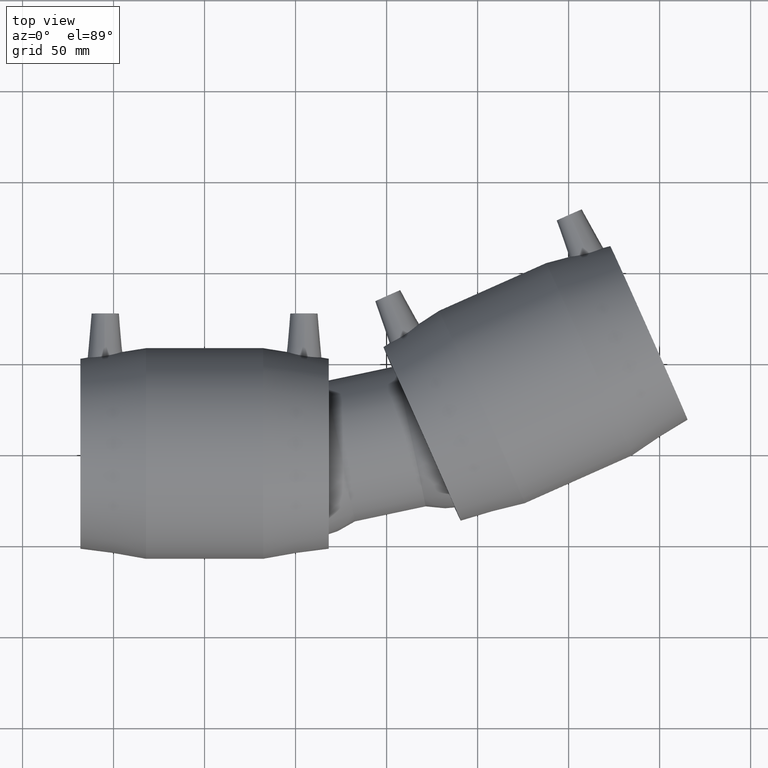
[diagram: clean part render]
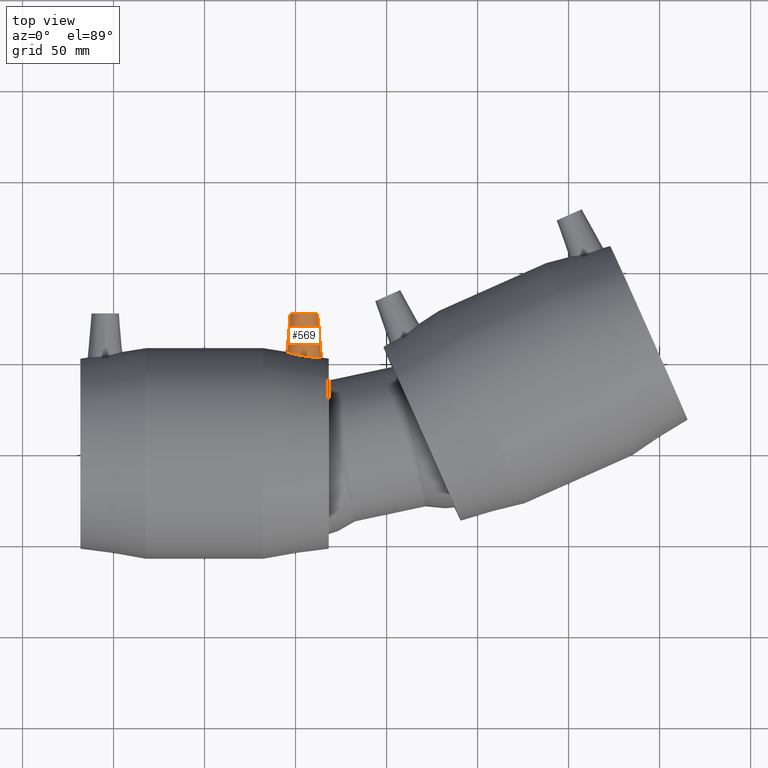
[diagram: same view with one face highlighted and labeled with its STEP entity id]
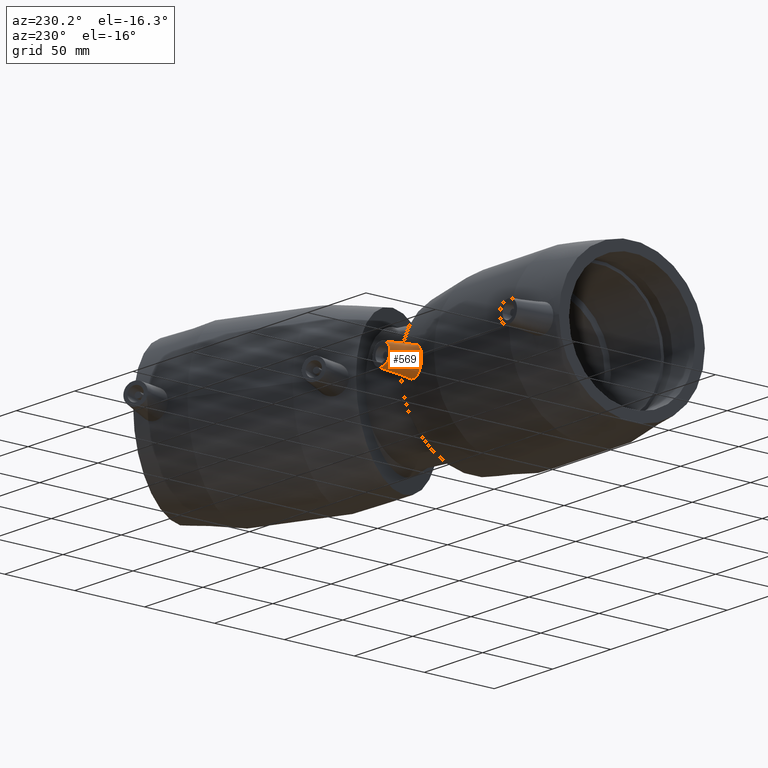
[diagram: same view with one face highlighted and labeled with its STEP entity id]
A machine part, top view. The second image highlights one B-rep face of the part: STEP entity #569.
A second angle (auxiliary view) of the same face is appended — the face is thin or edge-on in the first view.
In plain terms, the highlighted conical surface has half-angle 5 deg.
Its self-contained STEP definition (entity closure, byte-faithful):
#15=CONICAL_SURFACE('',#641,7.5,5.);
#76=FACE_BOUND('',#197,.T.);
#131=FACE_OUTER_BOUND('',#196,.T.);
#196=EDGE_LOOP('',(#469));
#197=EDGE_LOOP('',(#470));
#277=B_SPLINE_CURVE_WITH_KNOTS('',3,(#1157,#1158,#1159,#1160,#1161,#1162,
#1163,#1164,#1165,#1166,#1167,#1168,#1169,#1170,#1171,#1172,#1173,#1174,
#1175,#1176,#1177,#1178,#1179,#1180,#1181,#1182,#1183,#1184,#1185,#1186,
#1187,#1188,#1189,#1190),.UNSPECIFIED.,.T.,.F.,(4,2,2,2,2,2,2,2,2,2,2,2,
2,2,2,2,4),(0.,0.374990088919225,0.749980177838451,1.11609909215705,1.48221800647564,
1.84833692079424,2.21445583511283,2.58944592403206,2.96443601295128,3.31666423655562,
3.66889246015995,4.02184967276137,4.37480688536279,4.7277640979642,5.08072131056562,
5.43294953416995,5.78517775777429),.UNSPECIFIED.);
#297=CIRCLE('',#642,7.5);
#346=VERTEX_POINT('',#1154);
#347=VERTEX_POINT('',#1156);
#401=EDGE_CURVE('',#346,#346,#297,.T.);
#402=EDGE_CURVE('',#347,#347,#277,.T.);
#469=ORIENTED_EDGE('',*,*,#401,.F.);
#470=ORIENTED_EDGE('',*,*,#402,.F.);
#569=ADVANCED_FACE('',(#131,#76),#15,.T.);
#641=AXIS2_PLACEMENT_3D('',#1153,#777,#778);
#642=AXIS2_PLACEMENT_3D('',#1155,#779,#780);
#777=DIRECTION('center_axis',(0.,-1.,0.));
#778=DIRECTION('ref_axis',(-1.,0.,0.));
#779=DIRECTION('center_axis',(0.,1.,0.));
#780=DIRECTION('ref_axis',(-1.,0.,0.));
#1153=CARTESIAN_POINT('Origin',(54.56,77.,0.));
#1154=CARTESIAN_POINT('',(62.06,77.,9.18485099360515E-16));
#1155=CARTESIAN_POINT('Origin',(54.56,77.,0.));
#1156=CARTESIAN_POINT('',(54.9629770549691,53.4869952867012,9.54862179279033));
#1157=CARTESIAN_POINT('Ctrl Pts',(54.9629770549693,53.4869952867012,9.54862179279033));
#1158=CARTESIAN_POINT('Ctrl Pts',(53.7289235223367,53.6827205807601,9.58356312382291));
#1159=CARTESIAN_POINT('Ctrl Pts',(52.4173799209787,53.9385019798939,9.36352289397664));
#1160=CARTESIAN_POINT('Ctrl Pts',(50.0076291370687,54.4891463267129,8.40402339335127));
#1161=CARTESIAN_POINT('Ctrl Pts',(48.9087328003708,54.7815292013589,7.66487337951115));
#1162=CARTESIAN_POINT('Ctrl Pts',(47.1908024830213,55.2713100644481,5.95855418812734));
#1163=CARTESIAN_POINT('Ctrl Pts',(46.4492136358688,55.5025109305279,4.88479605742722));
#1164=CARTESIAN_POINT('Ctrl Pts',(45.4607482748411,55.8195972247125,2.51594984170668));
#1165=CARTESIAN_POINT('Ctrl Pts',(45.2142740493585,55.9032558476034,1.22039638106198));
#1166=CARTESIAN_POINT('Ctrl Pts',(45.2142740493585,55.9032558476034,-1.22039638106198));
#1167=CARTESIAN_POINT('Ctrl Pts',(45.4607482748411,55.8195972247125,-2.51594984170668));
#1168=CARTESIAN_POINT('Ctrl Pts',(46.4492136358688,55.5025109305279,-4.88479605742722));
#1169=CARTESIAN_POINT('Ctrl Pts',(47.1908024830213,55.2713100644481,-5.95855418812734));
#1170=CARTESIAN_POINT('Ctrl Pts',(48.9087328003708,54.7815292013589,-7.66487337951115));
#1171=CARTESIAN_POINT('Ctrl Pts',(50.0076291370687,54.4891463267129,-8.40402339335127));
#1172=CARTESIAN_POINT('Ctrl Pts',(52.4173799209787,53.9385019798939,-9.36352289397664));
#1173=CARTESIAN_POINT('Ctrl Pts',(53.7289235223367,53.6827205807601,-9.58356312382291));
#1174=CARTESIAN_POINT('Ctrl Pts',(56.1221236470421,53.3031505007244,-9.51580139746881));
#1175=CARTESIAN_POINT('Ctrl Pts',(57.3597601320536,53.1492389392509,-9.25257514912441));
#1176=CARTESIAN_POINT('Ctrl Pts',(59.6339121788256,52.9434146554307,-8.24923013019714));
#1177=CARTESIAN_POINT('Ctrl Pts',(60.670162065391,52.8892719276819,-7.508967908957));
#1178=CARTESIAN_POINT('Ctrl Pts',(62.302962706042,52.8372154172209,-5.81880290609336));
#1179=CARTESIAN_POINT('Ctrl Pts',(63.0092137922849,52.83542367789,-4.75475420289583));
#1180=CARTESIAN_POINT('Ctrl Pts',(63.9441806347299,52.8423300516058,-2.43360579525662));
#1181=CARTESIAN_POINT('Ctrl Pts',(64.1729560774903,52.8488015208488,-1.17652404200472));
#1182=CARTESIAN_POINT('Ctrl Pts',(64.1729560774903,52.8488015208488,1.17652404200472));
#1183=CARTESIAN_POINT('Ctrl Pts',(63.9441806347299,52.8423300516058,2.43360579525662));
#1184=CARTESIAN_POINT('Ctrl Pts',(63.0092137922849,52.83542367789,4.75475420289583));
#1185=CARTESIAN_POINT('Ctrl Pts',(62.302962706042,52.8372154172209,5.81880290609336));
#1186=CARTESIAN_POINT('Ctrl Pts',(60.670162065391,52.8892719276819,7.508967908957));
#1187=CARTESIAN_POINT('Ctrl Pts',(59.6339121788256,52.9434146554307,8.24923013019713));
#1188=CARTESIAN_POINT('Ctrl Pts',(57.3597601320536,53.1492389392509,9.25257514912441));
#1189=CARTESIAN_POINT('Ctrl Pts',(56.1221236470421,53.3031505007244,9.51580139746882));
#1190=CARTESIAN_POINT('Ctrl Pts',(54.9629770549693,53.4869952867012,9.54862179279033));